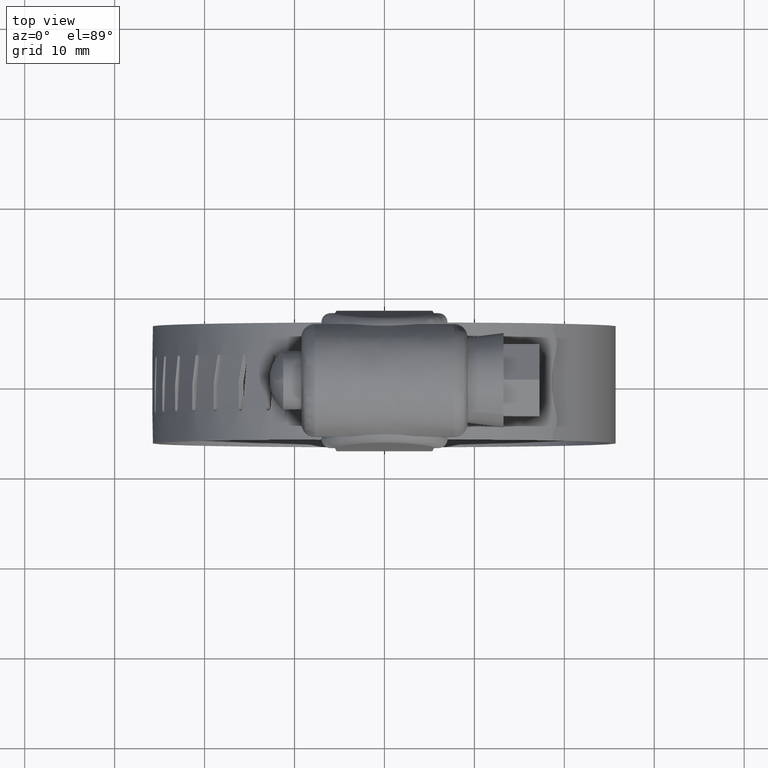
[diagram: clean part render]
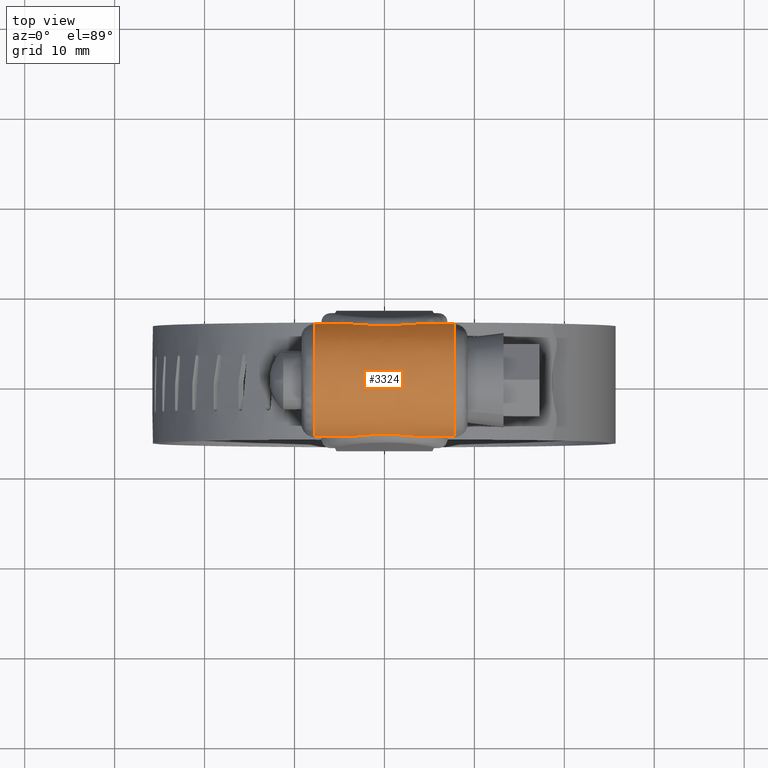
[diagram: same view with one face highlighted and labeled with its STEP entity id]
A machine part, top view. The second image highlights one B-rep face of the part: STEP entity #3324.
In plain terms, the highlighted face is a freeform B-spline surface patch.
Its self-contained STEP definition (entity closure, byte-faithful):
#1629=CARTESIAN_POINT('',(-3.766983245140355,-6.249999633170980,16.577121365332999));
#1630=VERTEX_POINT('',#1629);
#1742=CARTESIAN_POINT('',(3.766983245140355,-6.249999633170980,16.577121365332999));
#1743=VERTEX_POINT('',#1742);
#1751=CARTESIAN_POINT('',(-3.766983245140355,-6.249999633170980,16.577121365332999));
#1752=CARTESIAN_POINT('',(-3.478831496909463,-6.229233364205876,16.739128154655241));
#1753=CARTESIAN_POINT('',(-3.183300914378316,-6.204570008767342,16.882148632117168));
#1754=CARTESIAN_POINT('',(-2.576808892005547,-6.155228093785371,17.130036402120751));
#1755=CARTESIAN_POINT('',(-2.265836634976381,-6.130547265610534,17.234876518080021));
#1756=CARTESIAN_POINT('',(-1.866693869858923,-6.103751019367197,17.340919599546389));
#1757=CARTESIAN_POINT('',(-1.786486061357972,-6.098601892761600,17.360832235081901));
#1758=CARTESIAN_POINT('',(-1.626024433981459,-6.088846631766009,17.397907521513719));
#1759=CARTESIAN_POINT('',(-1.545665445436081,-6.084233341677489,17.415098594033861));
#1760=CARTESIAN_POINT('',(-1.304205280765513,-6.071283367227001,17.462673344400940));
#1761=CARTESIAN_POINT('',(-1.142721123573348,-6.063841070201703,17.489062200122419));
#1762=CARTESIAN_POINT('',(-0.656740159557208,-6.045693866015511,17.552452619586020));
#1763=CARTESIAN_POINT('',(-0.330719706065374,-6.039235105378521,17.573749912531952));
#1764=CARTESIAN_POINT('',(0.161419786626403,-6.039184386857341,17.573920279852860));
#1765=CARTESIAN_POINT('',(0.325985564198005,-6.040757096750824,17.568663909435760));
#1766=CARTESIAN_POINT('',(0.573631993009526,-6.045493593546023,17.552599085312352));
#1767=CARTESIAN_POINT('',(0.656241352251390,-6.047467871330164,17.545878086249040));
#1768=CARTESIAN_POINT('',(0.820475667525163,-6.052146371881373,17.529813216404978));
#1769=CARTESIAN_POINT('',(0.902253417529042,-6.054853191231874,17.520460500731989));
#1770=CARTESIAN_POINT('',(1.309472620170547,-6.070102513587345,17.467179843144940));
#1771=CARTESIAN_POINT('',(1.629917328613110,-6.087864840067938,17.403768142886481));
#1772=CARTESIAN_POINT('',(2.260627271324118,-6.130187882777850,17.236317853900928));
#1773=CARTESIAN_POINT('',(2.570888658853245,-6.154751397064583,17.132263968381999));
#1774=CARTESIAN_POINT('',(3.028839962946760,-6.192001216301294,16.945374784512900));
#1775=CARTESIAN_POINT('',(3.179777303179230,-6.204428908061730,16.878107182095970));
#1776=CARTESIAN_POINT('',(3.476686108309584,-6.228226204638982,16.734530296358798));
#1777=CARTESIAN_POINT('',(3.622917516897374,-6.239617229855899,16.658119055673680));
#1778=CARTESIAN_POINT('',(3.766983245140355,-6.249999633170980,16.577121365332999));
#1779=B_SPLINE_CURVE_WITH_KNOTS('',3,(#1751,#1752,#1753,#1754,#1755,#1756,#1757,#1758,#1759,#1760,#1761,#1762,#1763,#1764,#1765,#1766,#1767,#1768,#1769,#1770,#1771,#1772,#1773,#1774,#1775,#1776,#1777,#1778),.UNSPECIFIED.,.F.,.U.,(4,2,2,2,2,2,2,2,2,2,2,2,2,4),(0.000000039906754,0.125000000000001,0.250000000000001,0.281250000000001,0.312500000000001,0.375000000000001,0.500000000000001,0.562500000000001,0.593750000000001,0.625000000000000,0.750000000000000,0.875000000000000,0.937500000000000,0.999999982435041),.UNSPECIFIED.);
#1780=EDGE_CURVE('',#1630,#1743,#1779,.T.);
#1972=CARTESIAN_POINT('',(-3.767731017053410,6.249999633170980,16.577121365332999));
#1973=VERTEX_POINT('',#1972);
#1981=CARTESIAN_POINT('',(3.767731017053410,6.249999633170980,16.577121365332999));
#1982=VERTEX_POINT('',#1981);
#1983=CARTESIAN_POINT('',(3.767731017053410,6.249999633170980,16.577121365332999));
#1984=CARTESIAN_POINT('',(3.479497733507518,6.229237709105721,16.739094258291651));
#1985=CARTESIAN_POINT('',(3.183884050679524,6.204583222070062,16.882071151559519));
#1986=CARTESIAN_POINT('',(2.577243934754033,6.155257050299552,17.129902017543969));
#1987=CARTESIAN_POINT('',(2.266206147951572,6.130582696073145,17.234727400421061));
#1988=CARTESIAN_POINT('',(1.866991587071622,6.103790234875439,17.340766625409820));
#1989=CARTESIAN_POINT('',(1.786771470837745,6.098641773924828,17.360678763914390));
#1990=CARTESIAN_POINT('',(1.626284023453253,6.088887352445290,17.397754646818960));
#1991=CARTESIAN_POINT('',(1.545912167912042,6.084274283725710,17.414946625872581));
#1992=CARTESIAN_POINT('',(1.304413467685331,6.071324521135703,17.462525250646319));
#1993=CARTESIAN_POINT('',(1.142903704963588,6.063881763437935,17.488918202284239));
#1994=CARTESIAN_POINT('',(0.656845720759579,6.045732683460419,17.552320710697689));
#1995=CARTESIAN_POINT('',(0.330773580215899,6.039272260056391,17.573625094178219));
#1996=CARTESIAN_POINT('',(-0.161444854682112,6.039221514861135,17.573795563976041));
#1997=CARTESIAN_POINT('',(-0.326037165918512,6.040794574774885,17.568537633646770));
#1998=CARTESIAN_POINT('',(-0.573723678317318,6.045531948734165,17.552468569044731));
#1999=CARTESIAN_POINT('',(-0.656346915220894,6.047506583847865,17.545745815254921));
#2000=CARTESIAN_POINT('',(-0.820608736505639,6.052185828560140,17.529677062264259));
#2001=CARTESIAN_POINT('',(-0.902400225254582,6.054893035526168,17.520322214310770));
#2002=CARTESIAN_POINT('',(-1.309688241338812,6.070144131077192,17.467030690373669));
#2003=CARTESIAN_POINT('',(-1.630188360697988,6.087907219618561,17.403609516303838));
#2004=CARTESIAN_POINT('',(-2.261015828429809,6.130224851233542,17.236162525183840));
#2005=CARTESIAN_POINT('',(-2.571339628588592,6.154781890041164,17.132122576332680));
#2006=CARTESIAN_POINT('',(-3.029391561703454,6.192018955972971,16.945279975485011));
#2007=CARTESIAN_POINT('',(-3.180366883374803,6.204442304778198,16.878030458831791));
#2008=CARTESIAN_POINT('',(-3.477353567144340,6.228231820699066,16.734492306269210));
#2009=CARTESIAN_POINT('',(-3.623625442391634,6.239619468304403,16.658101592606808));
#2010=CARTESIAN_POINT('',(-3.767731017053410,6.249999633170980,16.577121365332999));
#2011=B_SPLINE_CURVE_WITH_KNOTS('',3,(#1983,#1984,#1985,#1986,#1987,#1988,#1989,#1990,#1991,#1992,#1993,#1994,#1995,#1996,#1997,#1998,#1999,#2000,#2001,#2002,#2003,#2004,#2005,#2006,#2007,#2008,#2009,#2010),.UNSPECIFIED.,.F.,.U.,(4,2,2,2,2,2,2,2,2,2,2,2,2,4),(0.000000039879375,0.125000000000000,0.250000000000001,0.281250000000000,0.312500000000000,0.375000000000000,0.500000000000000,0.562500000000000,0.593749999999999,0.624999999999999,0.749999999999999,0.875000000000000,0.937500000000000,0.999999982445228),.UNSPECIFIED.);
#2012=EDGE_CURVE('',#1982,#1973,#2011,.T.);
#2521=CARTESIAN_POINT('',(7.750000000000000,6.249999633170980,16.577121365332999));
#2522=VERTEX_POINT('',#2521);
#2580=CARTESIAN_POINT('',(7.750000000000000,-6.249999633170980,16.577121365332999));
#2581=VERTEX_POINT('',#2580);
#2616=CARTESIAN_POINT('',(7.750000000000000,-6.249999633170980,16.577121365332999));
#2617=CARTESIAN_POINT('',(7.750000000000009,-6.201849363835895,16.952986508518439));
#2618=CARTESIAN_POINT('',(7.749999999999989,-6.022079609669734,17.765641827336388));
#2619=CARTESIAN_POINT('',(7.750000000000011,-5.532299809412502,18.877335461269190));
#2620=CARTESIAN_POINT('',(7.750000000000011,-4.889806958361200,19.791882212580841));
#2621=CARTESIAN_POINT('',(7.749999999999999,-4.129514815625716,20.575666108728608));
#2622=CARTESIAN_POINT('',(7.750000000000038,-3.245622994592464,21.222125920178051));
#2623=CARTESIAN_POINT('',(7.749999999999965,-2.320334071560296,21.657394649588429));
#2624=CARTESIAN_POINT('',(7.750000000000070,-1.436451976163287,21.929651085360291));
#2625=CARTESIAN_POINT('',(7.749999999999963,-0.546569629371130,22.081625048336161));
#2626=CARTESIAN_POINT('',(7.750000000000052,0.546743585634277,22.087818813116979));
#2627=CARTESIAN_POINT('',(7.749999999999939,1.554212849845544,21.909912974508639));
#2628=CARTESIAN_POINT('',(7.750000000000023,2.473769620289267,21.592178830604979));
#2629=CARTESIAN_POINT('',(7.750000000000155,3.427607428389579,21.110279845604602));
#2630=CARTESIAN_POINT('',(7.749999999999909,4.351070049760155,20.394074458855140));
#2631=CARTESIAN_POINT('',(7.750000000000105,5.093120308436530,19.527452105235302));
#2632=CARTESIAN_POINT('',(7.749999999999914,5.619303194455633,18.680622292215521));
#2633=CARTESIAN_POINT('',(7.750000000000147,6.030158716264150,17.718905874832512));
#2634=CARTESIAN_POINT('',(7.749999999999836,6.198859452891367,16.976483294096230));
#2635=CARTESIAN_POINT('',(7.750000000000000,6.249999633170980,16.577121365332999));
#2636=B_SPLINE_CURVE_WITH_KNOTS('',3,(#2616,#2617,#2618,#2619,#2620,#2621,#2622,#2623,#2624,#2625,#2626,#2627,#2628,#2629,#2630,#2631,#2632,#2633,#2634,#2635),.UNSPECIFIED.,.F.,.U.,(4,1,1,1,1,1,1,1,1,1,1,1,1,1,1,1,1,4),(0.000000088841087,1.136814900284346,2.486768302949532,3.623606143710440,4.476219300981430,5.755141188328892,6.891968483219261,7.531447294818650,8.526158929180854,9.591870386888600,10.799731662170119,11.581301318085320,12.504986545221611,13.997068497624300,15.062846391678891,15.915471257623571,16.981214004812689,18.189077700187170),.UNSPECIFIED.);
#2637=EDGE_CURVE('',#2581,#2522,#2636,.T.);
#2722=CARTESIAN_POINT('',(-7.749999999999810,6.249999633170980,16.577121365332999));
#2723=VERTEX_POINT('',#2722);
#2782=CARTESIAN_POINT('',(-7.750000000000000,-6.249999633170980,16.577121365332999));
#2783=VERTEX_POINT('',#2782);
#2796=CARTESIAN_POINT('',(-7.749999999999810,6.249999633170980,16.577121365332999));
#2797=CARTESIAN_POINT('',(-7.749999999999829,6.201849363835881,16.952986508518439));
#2798=CARTESIAN_POINT('',(-7.749999999999823,6.022079609669811,17.765641827336388));
#2799=CARTESIAN_POINT('',(-7.749999999999861,5.532299809412272,18.877335461269212));
#2800=CARTESIAN_POINT('',(-7.749999999999898,4.889806958362405,19.791882212580720));
#2801=CARTESIAN_POINT('',(-7.749999999999905,4.129514815618228,20.575666108729369));
#2802=CARTESIAN_POINT('',(-7.749999999999967,3.245622994614221,21.222125920175820));
#2803=CARTESIAN_POINT('',(-7.749999999999916,2.320334071517509,21.657394649592760));
#2804=CARTESIAN_POINT('',(-7.750000000000043,1.436451976123336,21.929651085335198));
#2805=CARTESIAN_POINT('',(-7.749999999999949,0.546569629930669,22.081625047878891));
#2806=CARTESIAN_POINT('',(-7.750000000000033,-0.546743585997298,22.087818816918450));
#2807=CARTESIAN_POINT('',(-7.749999999999975,-1.554212849165504,21.909912963918160));
#2808=CARTESIAN_POINT('',(-7.750000000000023,-2.473769629514737,21.592178843819489));
#2809=CARTESIAN_POINT('',(-7.750000000000170,-3.427607425444211,21.110279845083291));
#2810=CARTESIAN_POINT('',(-7.749999999999909,-4.351070035168147,20.394074466781170));
#2811=CARTESIAN_POINT('',(-7.750000000000162,-5.093120319473245,19.527452098564311));
#2812=CARTESIAN_POINT('',(-7.749999999999922,-5.619303188959366,18.680622295680319));
#2813=CARTESIAN_POINT('',(-7.750000000000168,-6.030158718113669,17.718905873669620));
#2814=CARTESIAN_POINT('',(-7.749999999999835,-6.198859452564800,16.976483294301801));
#2815=CARTESIAN_POINT('',(-7.750000000000000,-6.249999633170980,16.577121365332999));
#2816=B_SPLINE_CURVE_WITH_KNOTS('',3,(#2796,#2797,#2798,#2799,#2800,#2801,#2802,#2803,#2804,#2805,#2806,#2807,#2808,#2809,#2810,#2811,#2812,#2813,#2814,#2815),.UNSPECIFIED.,.F.,.U.,(4,1,1,1,1,1,1,1,1,1,1,1,1,1,1,1,1,4),(0.000000088841087,1.136814900284346,2.486768302949532,3.623606143710440,4.476219300981430,5.755141188328892,6.891968483219261,7.531447294818650,8.526158929180854,9.591870386888600,10.799731662170119,11.581301318085320,12.504986545221611,13.997068497624300,15.062846391678891,15.915471257623571,16.981214004812689,18.189077700187170),.UNSPECIFIED.);
#2817=EDGE_CURVE('',#2723,#2783,#2816,.T.);
#3255=CARTESIAN_POINT('',(7.750000000000000,-6.249999633170980,16.577121365332999));
#3256=CARTESIAN_POINT('',(3.766983245140355,-6.249999633170980,16.577121365332999));
#3257=QUASI_UNIFORM_CURVE('',1,(#3255,#3256),.UNSPECIFIED.,.F.,.U.);
#3258=EDGE_CURVE('',#2581,#1743,#3257,.T.);
#3278=CARTESIAN_POINT('',(-3.766983245140355,-6.249999633170980,16.577121365332999));
#3279=CARTESIAN_POINT('',(-7.750000000000000,-6.249999633170980,16.577121365332999));
#3280=QUASI_UNIFORM_CURVE('',1,(#3278,#3279),.UNSPECIFIED.,.F.,.U.);
#3281=EDGE_CURVE('',#1630,#2783,#3280,.T.);
#3288=CARTESIAN_POINT('',(8.137500000000008,6.256752797267127,16.522550016851341));
#3289=CARTESIAN_POINT('',(-8.147187500000037,6.256752797267127,16.522550016851341));
#3290=CARTESIAN_POINT('',(8.137500000000008,5.578620881440008,22.205784116358405));
#3291=CARTESIAN_POINT('',(-8.147187500000037,5.578620881440008,22.205784116358405));
#3292=CARTESIAN_POINT('',(8.137500000000008,-0.143444799420466,22.075488034368480));
#3293=CARTESIAN_POINT('',(-8.147187500000037,-0.143444799420466,22.075488034368480));
#3294=CARTESIAN_POINT('',(8.137500000000008,-5.865510480280938,21.945191952378561));
#3295=CARTESIAN_POINT('',(-8.147187500000037,-5.865510480280938,21.945191952378561));
#3296=CARTESIAN_POINT('',(8.137500000000008,-6.284249946758260,16.236981200813990));
#3297=CARTESIAN_POINT('',(-8.147187500000037,-6.284249946758260,16.236981200813990));
#3305=(BOUNDED_SURFACE()B_SPLINE_SURFACE(1,2,((#3288,#3290,#3292,#3294,#3296),(#3289,#3291,#3293,#3295,#3297)),.UNSPECIFIED.,.F.,.F.,.U.)B_SPLINE_SURFACE_WITH_KNOTS((2,2),(3,2,3),(0.0,16.284687500000050),(0.0,9.738261264178698,19.476522528357400),.UNSPECIFIED.)GEOMETRIC_REPRESENTATION_ITEM()RATIONAL_B_SPLINE_SURFACE(((1.0,0.740218127486832,1.0,0.740218127486832,1.0),(1.0,0.740218127486832,1.0,0.740218127486832,1.0)))REPRESENTATION_ITEM('')SURFACE());
#3306=CARTESIAN_POINT('',(7.750000000000000,6.249999633170980,16.577121365332999));
#3307=CARTESIAN_POINT('',(3.767731017053410,6.249999633170980,16.577121365332999));
#3308=QUASI_UNIFORM_CURVE('',1,(#3306,#3307),.UNSPECIFIED.,.F.,.U.);
#3309=EDGE_CURVE('',#2522,#1982,#3308,.T.);
#3310=ORIENTED_EDGE('',*,*,#3309,.T.);
#3311=ORIENTED_EDGE('',*,*,#2012,.T.);
#3312=CARTESIAN_POINT('',(-3.767731017053410,6.249999633170980,16.577121365332999));
#3313=CARTESIAN_POINT('',(-7.749999999999810,6.249999633170980,16.577121365332999));
#3314=QUASI_UNIFORM_CURVE('',1,(#3312,#3313),.UNSPECIFIED.,.F.,.U.);
#3315=EDGE_CURVE('',#1973,#2723,#3314,.T.);
#3316=ORIENTED_EDGE('',*,*,#3315,.T.);
#3317=ORIENTED_EDGE('',*,*,#2817,.T.);
#3318=ORIENTED_EDGE('',*,*,#3281,.F.);
#3319=ORIENTED_EDGE('',*,*,#1780,.T.);
#3320=ORIENTED_EDGE('',*,*,#3258,.F.);
#3321=ORIENTED_EDGE('',*,*,#2637,.T.);
#3322=EDGE_LOOP('',(#3310,#3311,#3316,#3317,#3318,#3319,#3320,#3321));
#3323=FACE_OUTER_BOUND('',#3322,.T.);
#3324=ADVANCED_FACE('',(#3323),#3305,.T.);